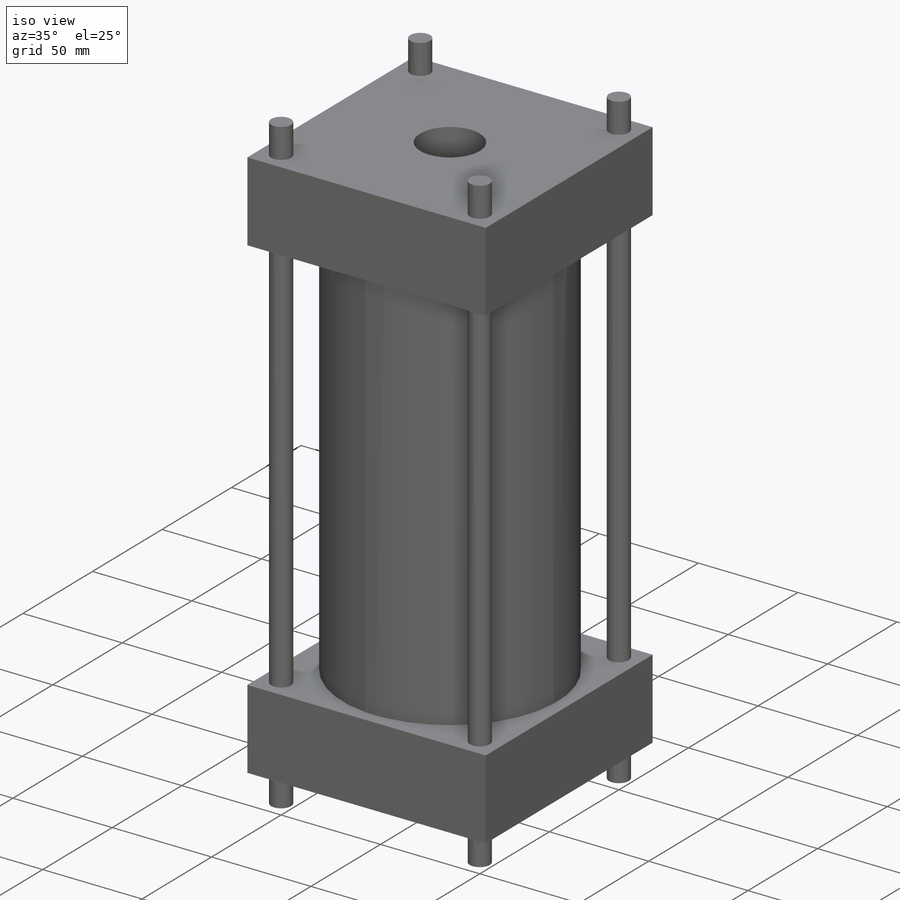
[diagram: iso view]
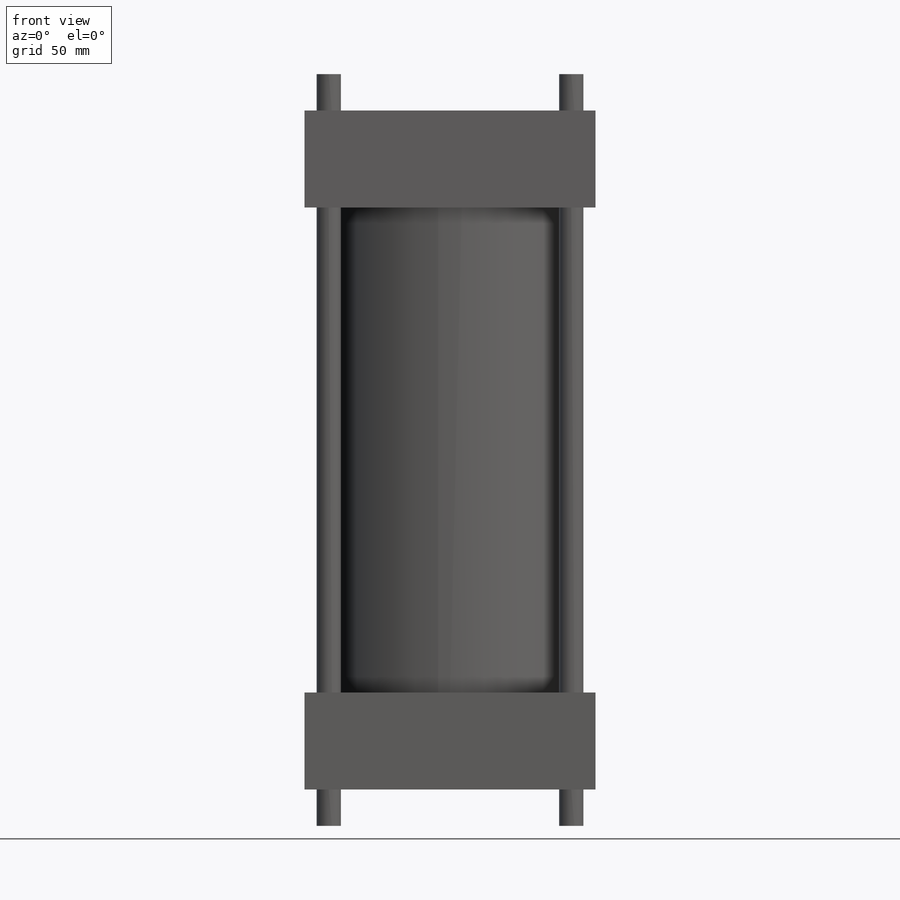
[diagram: front view]
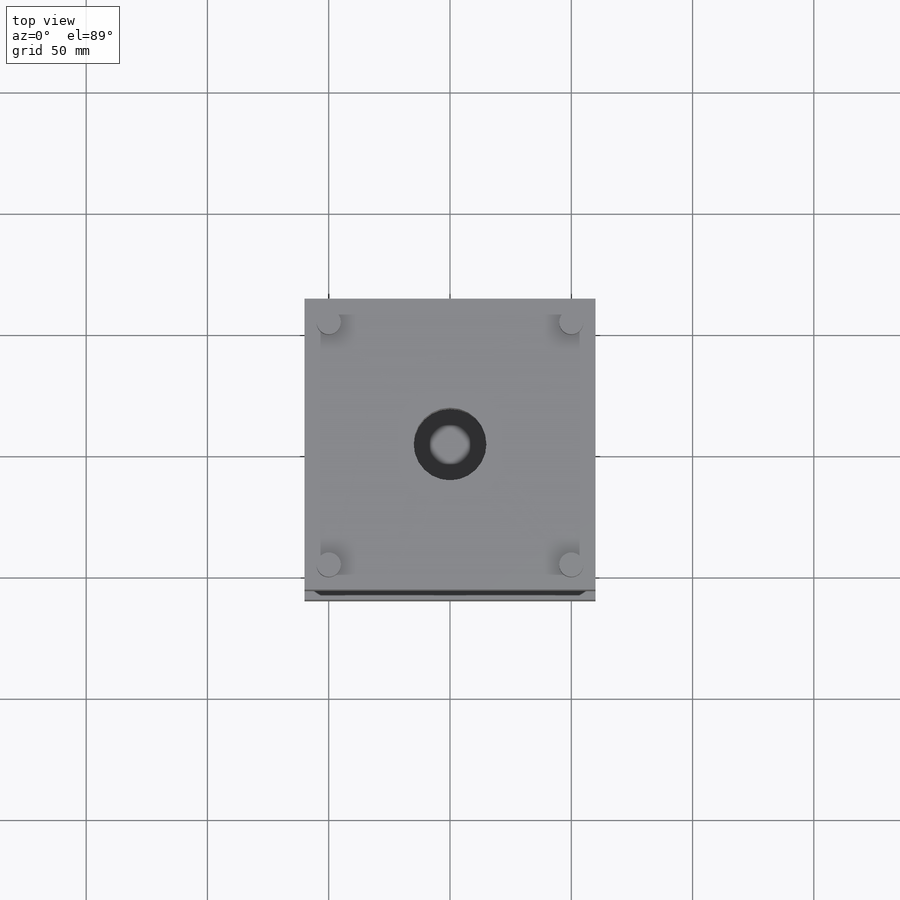
[diagram: top view]
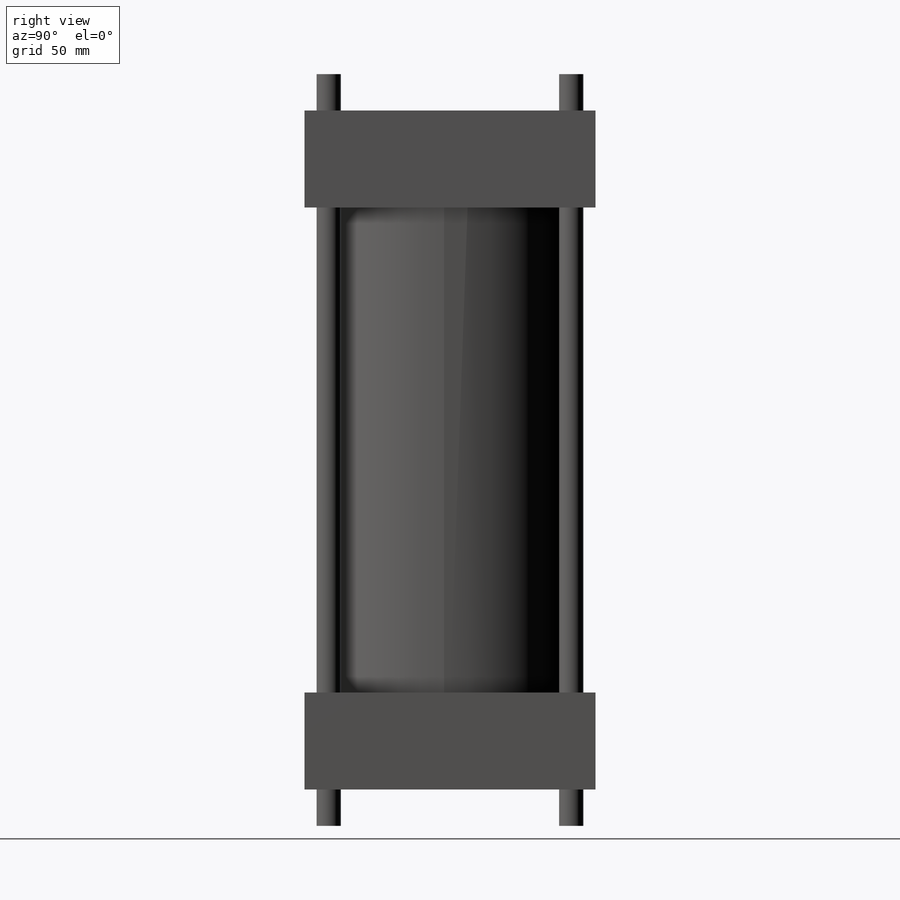
[diagram: right view]
SOLIDWORKS PART (.sldprt)
format: sldprt  version: not decoded by parser v0  size: 192,000 bytes
history: native  units: mm
features: sketch x5, extrude x4, material x1, cut_extrude x1, pattern_linear x1 (+12 scaffold rows collapsed)
feature tree (24):
  scaffold x12  (default folders/planes/origin — collapsed)
  material  "3004-O, Rod (SS)"
  sketch  "Sketch1"  dims[D1=4.0mm]
  extrude  "Boss-Extrude1"  Depth=250mm
  sketch  "Sketch2"  dims[D1=120.0mm D2=120.0mm]
  extrude  "Boss-Extrude2"  Depth=40mm
  sketch  "Sketch3"  dims[D1=0.0mm]
  extrude  "Boss-Extrude3"  Depth=40mm
  sketch  "Sketch4"  dims[D1=~24.995751mm]
  cut_extrude  "Cut-Extrude1"  [1 undecoded]
  sketch  "Sketch5"  dims[D3=10.0mm D1=10.0mm D2=10.0mm]
  extrude  "Boss-Extrude4"  Depth=15mm
  pattern_linear  "LPattern1"  Count1=2 Count2=2 Spacing1=100mm Spacing2=100mm
decode coverage: 10 of 11 modeling features carry decoded parameters
note: ~ marks probable driven/reference dimensions
note: 1 parameter value undecoded
note: suppression state not decoded; provenance and decode notes live in map.json
